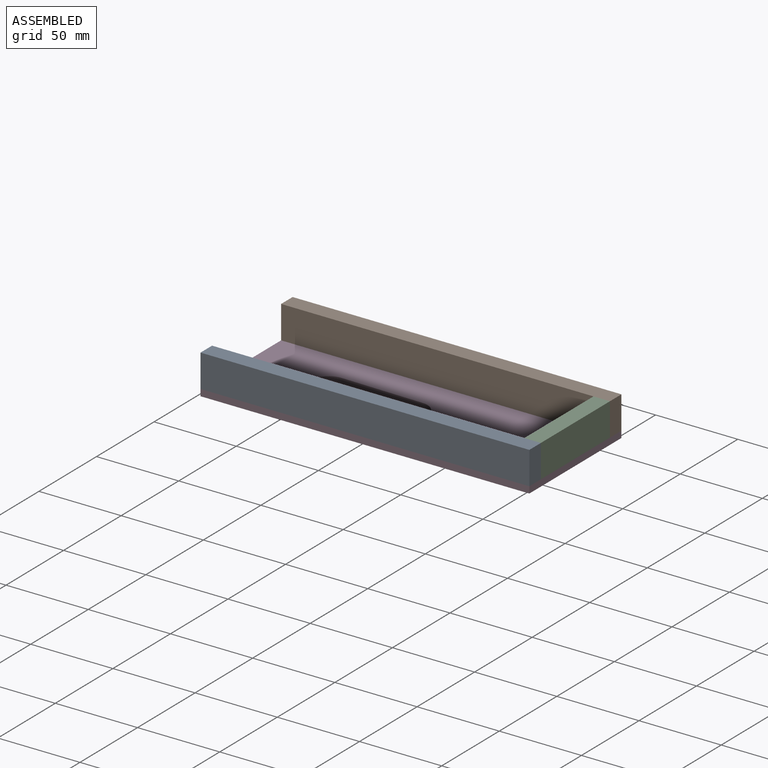
[diagram: assembled view]
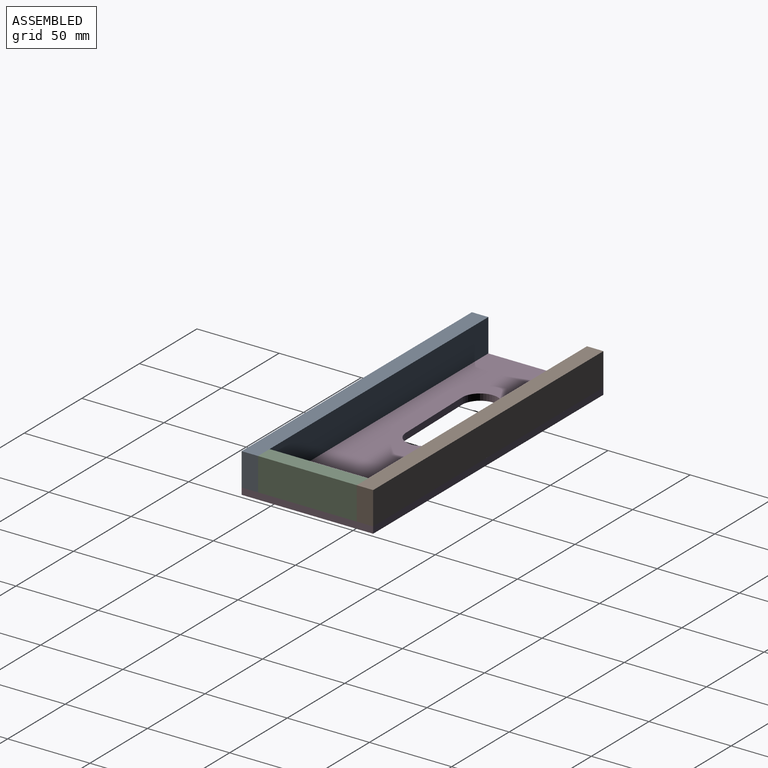
[diagram: assembled view, second angle]
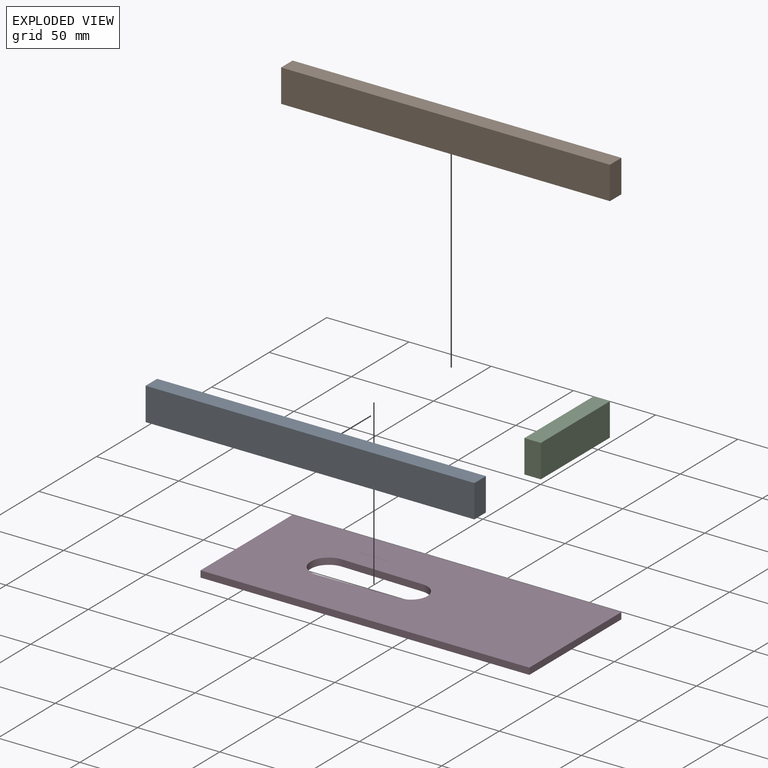
[diagram: exploded view]
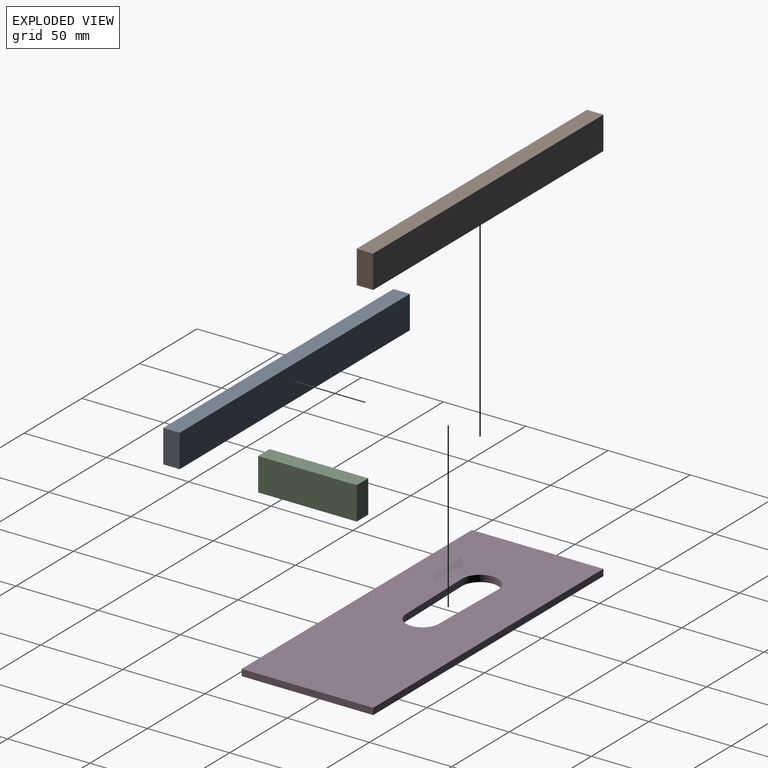
[diagram: exploded view, second angle]
ASSEMBLY  parts=4 mates=3
PART A: 6 faces, bbox 200x10x20 mm
  f0: plane 200x20mm, normal (0,-1,0), area 4000mm2, adj f1,f3,f4,f5
  f1: plane 20x10mm, normal (1,0,0), area 200mm2, adj f0,f2,f4,f5
  f2: plane 200x20mm, normal (0,1,0), area 4000mm2, adj f1,f3,f4,f5
  f3: plane 20x10mm, normal (-1,0,0), area 200mm2, adj f0,f2,f4,f5
  f4: plane 200x10mm, normal (0,0,1), area 2000mm2, adj f0,f1,f2,f3
  f5: plane 200x10mm, normal (0,0,-1), area 2000mm2, adj f0,f1,f2,f3
PART B: same geometry as A
PART C: 6 faces, bbox 10x60x20 mm
  f0: plane 20x10mm, normal (0,1,0), area 200mm2, adj f1,f3,f4,f5
  f1: plane 60x20mm, normal (-1,0,0), area 1200mm2, adj f0,f2,f4,f5
  f2: plane 20x10mm, normal (0,-1,0), area 200mm2, adj f1,f3,f4,f5
  f3: plane 60x20mm, normal (1,0,0), area 1200mm2, adj f0,f2,f4,f5
  f4: plane 60x10mm, normal (0,0,1), area 600mm2, adj f0,f1,f2,f3
  f5: plane 60x10mm, normal (0,0,-1), area 600mm2, adj f0,f1,f2,f3
PART D: 10 faces, bbox 200x80x4 mm
  f0: plane 200x4mm, normal (0,1,0), area 800mm2, adj f1,f7,f8,f9
  f1: plane 80x4mm, normal (-1,0,0), area 320mm2, adj f0,f2,f8,f9
  f2: plane 200x4mm, normal (0,-1,0), area 800mm2, adj f1,f7,f8,f9
  f3: plane 49.2x4mm, normal (-0.02,1,0), area 196.8mm2, adj f4,f6,f8,f9
  f4: cylinder r=11mm len=22mm, axis (0,0,-1), area 140.5mm2, adj f3,f5,f8,f9
  f5: plane 49.92x4mm, normal (-0.02,-1,0), area 199.7mm2, adj f4,f6,f8,f9
  f6: cylinder r=10mm len=20mm, axis (0,0,-1), area 127mm2, adj f3,f5,f8,f9
  f7: plane 80x4mm, normal (1,0,0), area 320mm2, adj f0,f2,f8,f9
  f8: plane 200x80mm, normal (0,0,1), area 14603.2mm2, adj f0,f1,f2,f3,f4,f5,f6,f7
  f9: plane 200x80mm, normal (0,0,-1), area 14603.2mm2, adj f0,f1,f2,f3,f4,f5,f6,f7
PLACE A t=(128.32,-42.88,13.66)mm
PLACE B t=(128.32,27.12,13.66)mm
PLACE C t=(131.46,-22.92,13.66)mm
PLACE D t=(28.32,-2.88,9.66)mm
MATE fastened C.f2 <-> A.f2  axis (0,-1,0) through (128.32,-32.88,13.66)mm
MATE fastened D.f8 <-> A.f5  axis (0,0,1) through (-71.68,-42.88,13.66)mm
MATE fastened D.f8 <-> B.f5  axis (0,0,1) through (-71.68,37.12,13.66)mm
